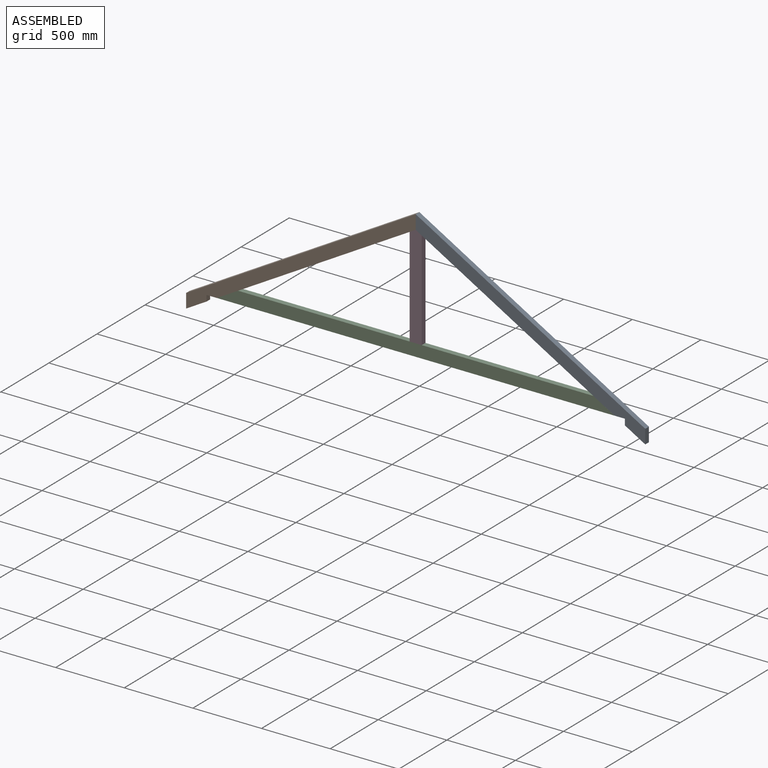
[diagram: assembled view]
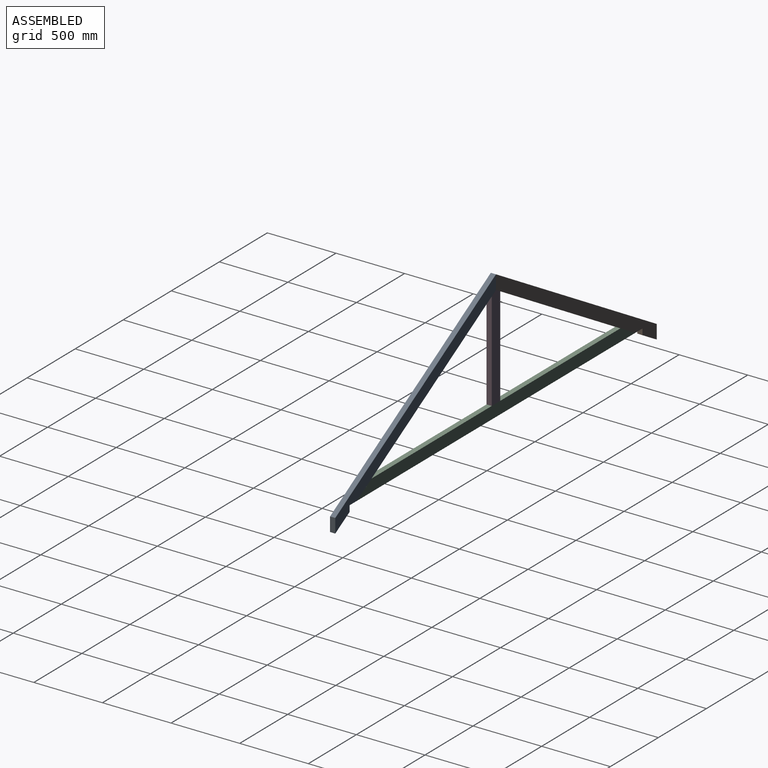
[diagram: assembled view, second angle]
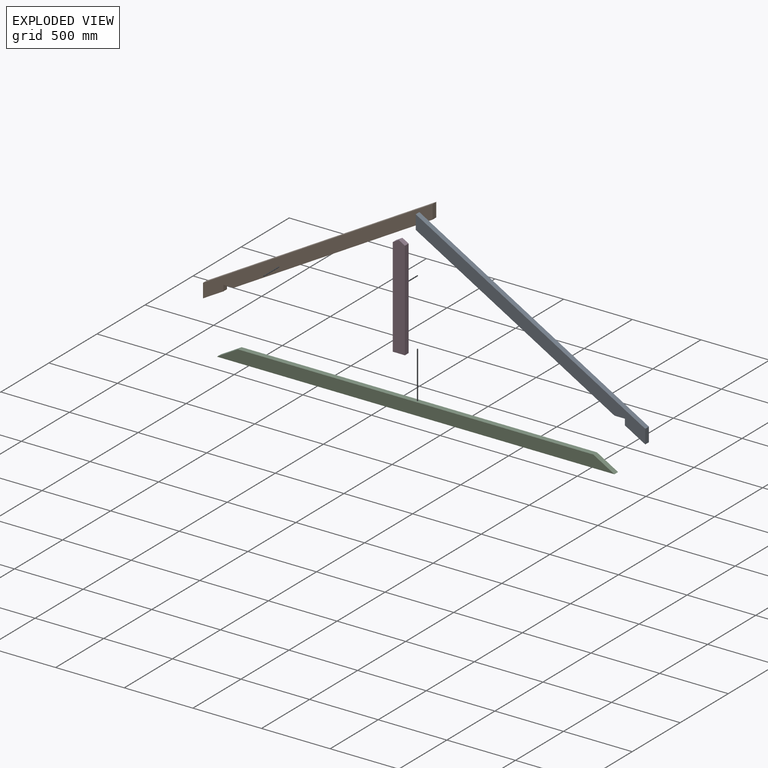
[diagram: exploded view]
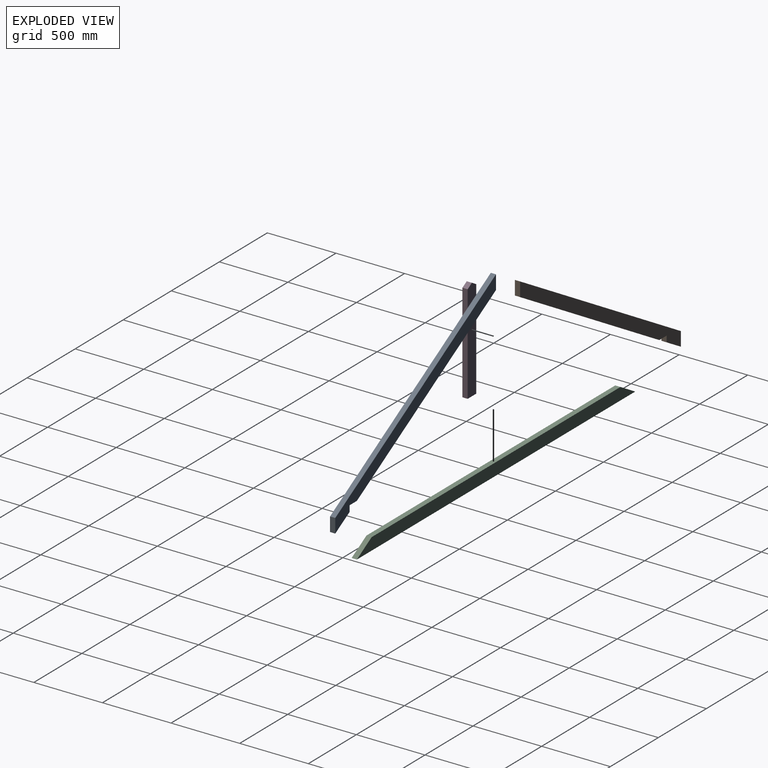
[diagram: exploded view, second angle]
ASSEMBLY  parts=4 mates=3
PART A: 9 faces, bbox 1982.7x38.1x88.9 mm
  f0: plane 1931.37x38.1mm, normal (0,0,1), area 73585.2mm2, adj f1,f6,f7,f8
  f1: plane 88.9x51.33mm, normal (-0.87,0,0.5), area 3911.1mm2, adj f0,f2,f7,f8
  f2: plane 171.58x38.1mm, normal (0,0,-1), area 6537.1mm2, adj f1,f3,f7,f8
  f3: plane 38.1x37.9mm, normal (0.87,0,-0.5), area 1667.4mm2, adj f2,f4,f7,f8
  f4: plane 65.64x38.1mm, normal (-0.5,0,-0.87), area 2887.9mm2, adj f3,f5,f7,f8
  f5: plane 1672.27x38.1mm, normal (0,0,-1), area 63713.4mm2, adj f4,f6,f7,f8
  f6: plane 88.9x51.33mm, normal (0.87,0,-0.5), area 3911.1mm2, adj f0,f5,f7,f8
  f7: plane 1982.7x88.9mm, normal (0,-1,0), area 170040.2mm2, adj f0,f1,f2,f3,f4,f5,f6
  f8: plane 1982.7x88.9mm, normal (0,1,0), area 170040.2mm2, adj f0,f1,f2,f3,f4,f5,f6
PART B: same geometry as A
PART C: 6 faces, bbox 2896.4x38.1x88.9 mm
  f0: plane 153.98x88.9mm, normal (-0.5,0,0.87), area 6774.2mm2, adj f1,f3,f4,f5
  f1: plane 2896.36x38.1mm, normal (0,0,-1), area 110351.4mm2, adj f0,f2,f4,f5
  f2: plane 153.98x88.9mm, normal (0.5,0,0.87), area 6774.2mm2, adj f1,f3,f4,f5
  f3: plane 2588.4x38.1mm, normal (0,0,1), area 98618.2mm2, adj f0,f2,f4,f5
  f4: plane 2896.36x88.9mm, normal (0,-1,0), area 243797.8mm2, adj f0,f1,f2,f3
  f5: plane 2896.36x88.9mm, normal (0,1,0), area 243797.8mm2, adj f0,f1,f2,f3
PART D: 7 faces, bbox 88.9x38.1x747.3 mm
  f0: plane 721.6x38.1mm, normal (-1,0,0), area 27493.1mm2, adj f1,f4,f5,f6
  f1: plane 88.9x38.1mm, normal (0,0,-1), area 3387.1mm2, adj f0,f2,f5,f6
  f2: plane 721.6x38.1mm, normal (1,0,0), area 27493.1mm2, adj f1,f3,f5,f6
  f3: plane 44.45x38.1mm, normal (0.5,0,0.87), area 1955.5mm2, adj f2,f4,f5,f6
  f4: plane 44.45x38.1mm, normal (-0.5,0,0.87), area 1955.5mm2, adj f0,f3,f5,f6
  f5: plane 747.27x88.9mm, normal (0,-1,0), area 65291.4mm2, adj f0,f1,f2,f3,f4
  f6: plane 747.27x88.9mm, normal (0,1,0), area 65291.4mm2, adj f0,f1,f2,f3,f4
PLACE A rot(axis=(-0.26,0,-0.97),180deg) t=(3345.23,0,102.65)mm
PLACE B rot(axis=(0,-1,0),30deg) t=(0,38.1,102.65)mm
PLACE C rot(axis=(1,0,0),0deg) t=(224.39,38.1,129.55)mm
PLACE D t=(1628.17,38.1,965.68)mm
MATE fastened A.f8 <-> B.f7  axis (0,-1,0) through (1672.62,0,1068.34)mm
MATE fastened C.f1 <-> B.f4  axis (0,0,-1) through (224.39,0,129.55)mm
MATE fastened D.f5 <-> A.f8  axis (0,-1,0) through (1672.62,0,965.68)mm
